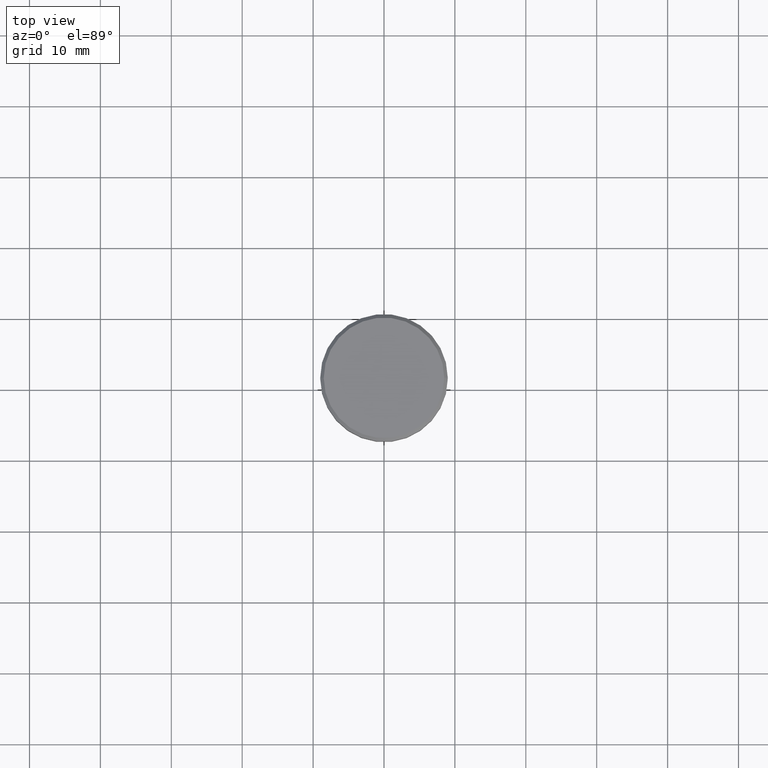
[diagram: clean part render]
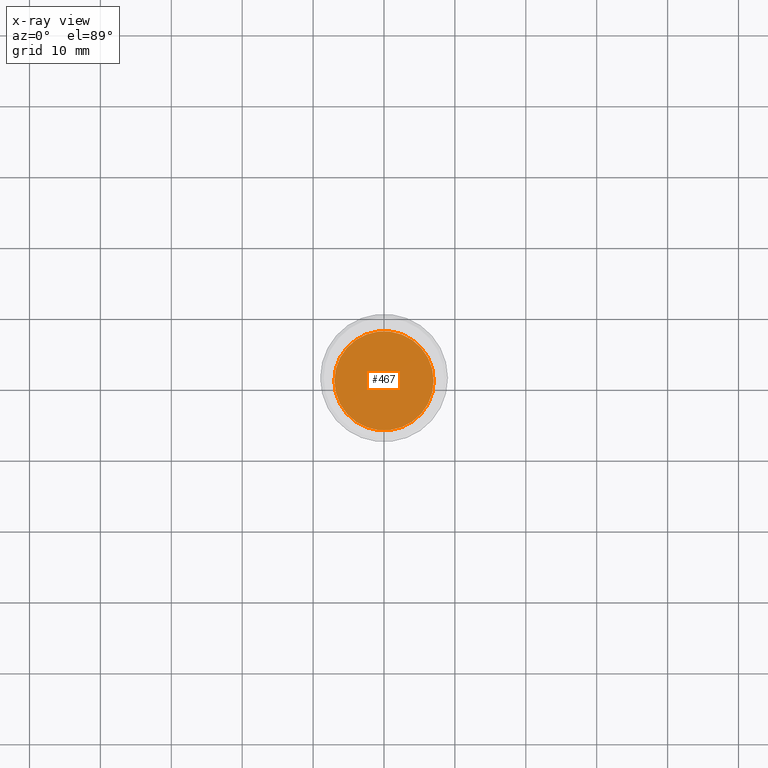
[diagram: x-ray — body ghosted, one internal face saturated and labeled with its STEP entity id]
A machine part, top view, then the same camera in x-ray: the body is ghosted and one INTERNAL B-rep face — a face not visible from any outside direction — is saturated and labeled: STEP entity #467.
In plain terms, the highlighted planar face has unit normal (0, 0, -1).
Its self-contained STEP definition (entity closure, byte-faithful):
#17 = VERTEX_POINT ( 'NONE', #664 ) ;
#44 = DIRECTION ( 'NONE',  ( -0.000000000000000000, -0.000000000000000000, 1.000000000000000000 ) ) ;
#52 = VERTEX_POINT ( 'NONE', #658 ) ;
#112 = AXIS2_PLACEMENT_3D ( 'NONE', #295, #865, #197 ) ;
#148 = EDGE_CURVE ( 'NONE', #52, #17, #797, .T. ) ;
#181 = DIRECTION ( 'NONE',  ( 1.000000000000000000, 0.000000000000000000, 0.000000000000000000 ) ) ;
#195 = DIRECTION ( 'NONE',  ( -0.000000000000000000, -0.000000000000000000, 1.000000000000000000 ) ) ;
#197 = DIRECTION ( 'NONE',  ( -1.000000000000000000, 0.000000000000000000, -0.000000000000000000 ) ) ;
#211 = PLANE ( 'NONE',  #112 ) ;
#295 = CARTESIAN_POINT ( 'NONE',  ( 0.000000000000000000, -3.469446951953614189E-15, -25.00000000000000000 ) ) ;
#364 = DIRECTION ( 'NONE',  ( 1.000000000000000000, 0.000000000000000000, 0.000000000000000000 ) ) ;
#458 = CIRCLE ( 'NONE', #953, 7.000000000000000000 ) ;
#467 = ADVANCED_FACE ( 'NONE', ( #941 ), #211, .F. ) ;
#595 = CARTESIAN_POINT ( 'NONE',  ( 0.000000000000000000, 0.000000000000000000, -25.00000000000000000 ) ) ;
#637 = ORIENTED_EDGE ( 'NONE', *, *, #1044, .T. ) ;
#658 = CARTESIAN_POINT ( 'NONE',  ( -7.000000000000000000, 8.572527594031472204E-16, -25.00000000000000000 ) ) ;
#664 = CARTESIAN_POINT ( 'NONE',  ( 7.000000000000000000, 0.000000000000000000, -25.00000000000000000 ) ) ;
#715 = EDGE_LOOP ( 'NONE', ( #637, #847 ) ) ;
#797 = CIRCLE ( 'NONE', #855, 7.000000000000000000 ) ;
#847 = ORIENTED_EDGE ( 'NONE', *, *, #148, .T. ) ;
#855 = AXIS2_PLACEMENT_3D ( 'NONE', #1029, #44, #364 ) ;
#865 = DIRECTION ( 'NONE',  ( 0.000000000000000000, 0.000000000000000000, -1.000000000000000000 ) ) ;
#941 = FACE_OUTER_BOUND ( 'NONE', #715, .T. ) ;
#953 = AXIS2_PLACEMENT_3D ( 'NONE', #595, #195, #181 ) ;
#1029 = CARTESIAN_POINT ( 'NONE',  ( 0.000000000000000000, 0.000000000000000000, -25.00000000000000000 ) ) ;
#1044 = EDGE_CURVE ( 'NONE', #17, #52, #458, .T. ) ;